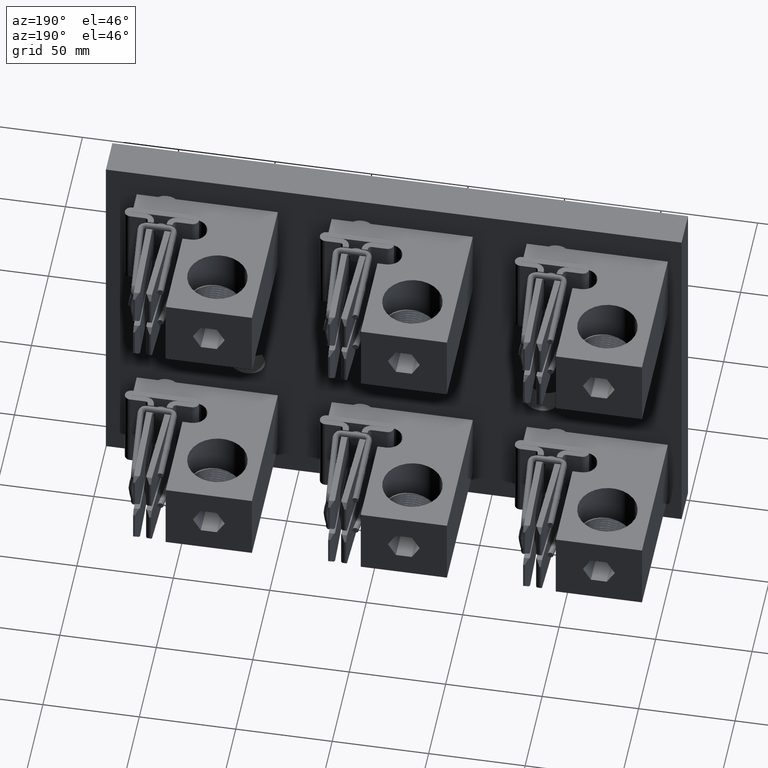
[diagram: clean part render]
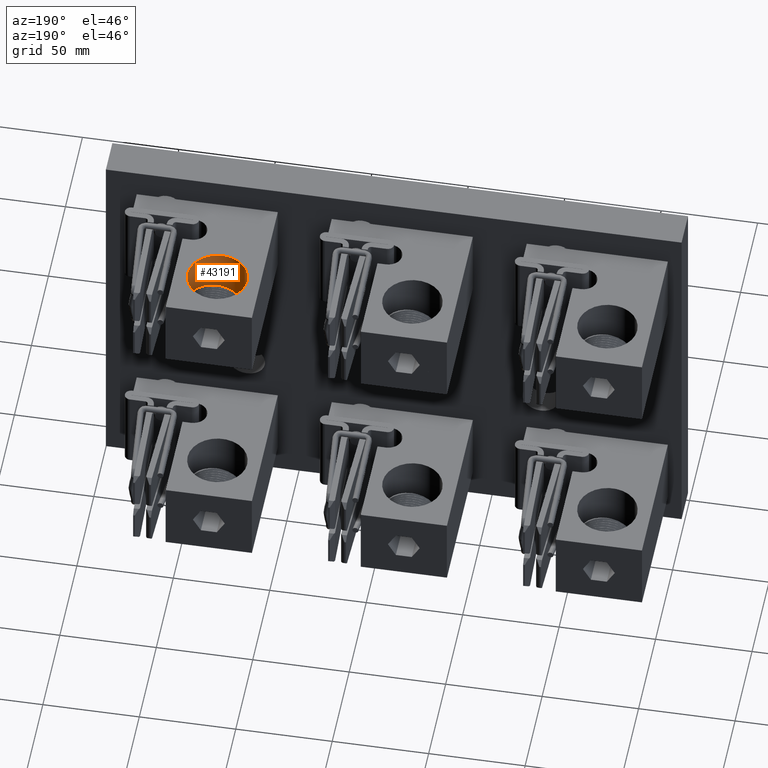
[diagram: same view with one face highlighted and labeled with its STEP entity id]
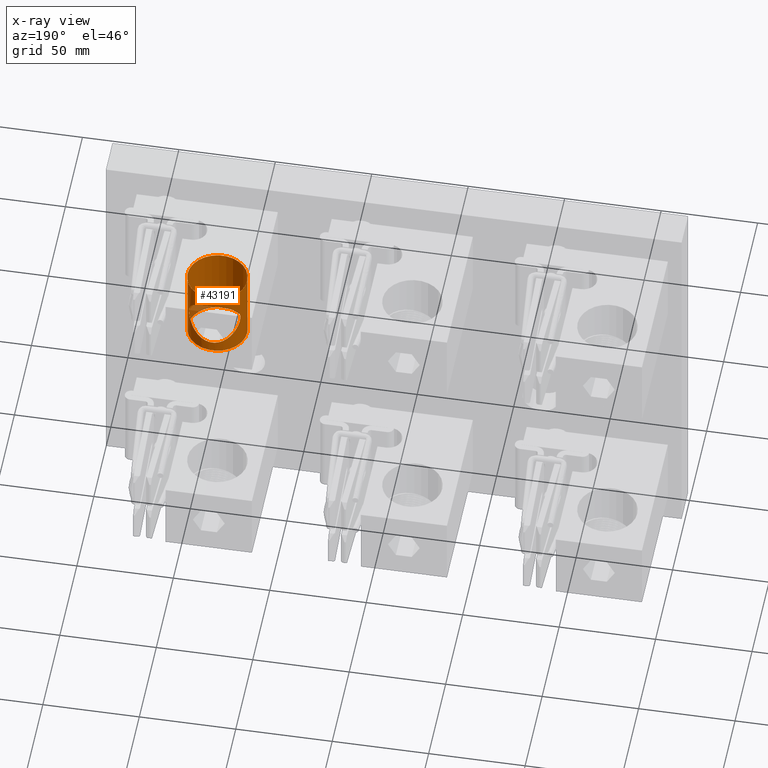
[diagram: x-ray of the same camera — body ghosted, the highlighted face saturated]
A machine part, auxiliary view. The second image highlights one B-rep face of the part: STEP entity #43191.
The next image is the same camera in x-ray: the body ghosted, the highlighted face saturated — about 4% of this face is hidden behind the body in this view.
In plain terms, the highlighted cylindrical surface (bore or boss wall) has radius 15.4686 mm, axis along (-0, 0, 1).
Its self-contained STEP definition (entity closure, byte-faithful):
#4046 = CARTESIAN_POINT ( 'NONE',  ( 2.827097322695955500, 3.193709035272325200, 2.333183651683647900 ) ) ;
#4314 = CARTESIAN_POINT ( 'NONE',  ( 3.225970257455569100, 3.358978440829739400, 2.126575082697013600 ) ) ;
#4594 = CARTESIAN_POINT ( 'NONE',  ( 3.558676988921589700, 3.272243346142679400, 2.230608804997419100 ) ) ;
#4863 = CARTESIAN_POINT ( 'NONE',  ( 3.753480332175912300, 3.085222296419632700, 2.524473005529415600 ) ) ;
#5138 = CARTESIAN_POINT ( 'NONE',  ( 3.753577437899582800, 3.085074104484783100, 2.775124366733585600 ) ) ;
#5399 = CARTESIAN_POINT ( 'NONE',  ( 3.518073435993760900, 3.294596412628638700, 3.096908370246581400 ) ) ;
#5676 = CARTESIAN_POINT ( 'NONE',  ( 3.172505664078537600, 3.354949647298513900, 3.168733009788133000 ) ) ;
#5959 = CARTESIAN_POINT ( 'NONE',  ( 2.848446398477625600, 3.212397921920481900, 2.992059320855240000 ) ) ;
#6237 = CARTESIAN_POINT ( 'NONE',  ( 2.721550000000001000, 3.061257285055306800, 2.649999999999998100 ) ) ;
#7667 = DIRECTION ( 'NONE',  ( -3.196228004487266600E-016, 0.0000000000000000000, 1.000000000000000000 ) ) ;
#9580 = VERTEX_POINT ( 'NONE', #27828 ) ;
#10469 = CARTESIAN_POINT ( 'NONE',  ( 2.880780420818535700, 3.238292195777869400, 2.273696009238495000 ) ) ;
#10742 = CARTESIAN_POINT ( 'NONE',  ( 3.280962401634974800, 3.358216363005186400, 2.127460995031094100 ) ) ;
#11023 = CARTESIAN_POINT ( 'NONE',  ( 3.596878222540591500, 3.247281598853107200, 2.262120174089649700 ) ) ;
#11295 = CARTESIAN_POINT ( 'NONE',  ( 3.763589656356949300, 3.069311141131620100, 2.576524023857639000 ) ) ;
#11581 = CARTESIAN_POINT ( 'NONE',  ( 3.738934579835118100, 3.106355943382903100, 2.824117650525077600 ) ) ;
#11862 = CARTESIAN_POINT ( 'NONE',  ( 3.472644926285135100, 3.315108435140991200, 3.121679126157027800 ) ) ;
#12134 = CARTESIAN_POINT ( 'NONE',  ( 3.119034108830572600, 3.346102412120275800, 3.158390376025197000 ) ) ;
#12393 = CARTESIAN_POINT ( 'NONE',  ( 2.818588671847344500, 3.184990048804268200, 2.954023220217060000 ) ) ;
#14449 = CARTESIAN_POINT ( 'NONE',  ( 3.854000000000000100, 2.750000000000000400, 1.899999999999998800 ) ) ;
#14574 = ORIENTED_EDGE ( 'NONE', *, *, #30203, .F. ) ;
#16722 = CARTESIAN_POINT ( 'NONE',  ( 2.722547859060700400, 3.062950835973184300, 2.612963921968487000 ) ) ;
#16994 = CARTESIAN_POINT ( 'NONE',  ( 2.917806335642074300, 3.263861333578024200, 2.241079775636110500 ) ) ;
#17270 = CARTESIAN_POINT ( 'NONE',  ( 3.317696483523217200, 3.354714970127616400, 2.131541085165986600 ) ) ;
#17536 = CARTESIAN_POINT ( 'NONE',  ( 3.642380834471784300, 3.212364658960771300, 2.307767121722704500 ) ) ;
#17826 = CARTESIAN_POINT ( 'NONE',  ( 3.767226711578616900, 3.063306831308582700, 2.613060413054484300 ) ) ;
#18097 = CARTESIAN_POINT ( 'NONE',  ( 3.713748573565776500, 3.139356783935039400, 2.885278811288822400 ) ) ;
#18377 = CARTESIAN_POINT ( 'NONE',  ( 3.424368372866132900, 3.332251220991546700, 3.142081268136823100 ) ) ;
#18647 = CARTESIAN_POINT ( 'NONE',  ( 3.067294402607462000, 3.332767437310100600, 3.142691957658355900 ) ) ;
#18922 = CARTESIAN_POINT ( 'NONE',  ( 2.776592658208511200, 3.139766126412529600, 2.885940699852755000 ) ) ;
#23176 = CARTESIAN_POINT ( 'NONE',  ( 2.729186218757047900, 3.073825352755910100, 2.559172899230815800 ) ) ;
#23437 = CARTESIAN_POINT ( 'NONE',  ( 2.971769226046230700, 3.295168269973867600, 2.202279667164220600 ) ) ;
#23611 = AXIS2_PLACEMENT_3D ( 'NONE', #27056, #7667, #59221 ) ;
#23709 = CARTESIAN_POINT ( 'NONE',  ( 3.344834784513650100, 3.350828939997650700, 2.136078531185627800 ) ) ;
#23978 = CARTESIAN_POINT ( 'NONE',  ( 3.689235010386286500, 3.166772626162444000, 2.372666466428982300 ) ) ;
#24265 = CARTESIAN_POINT ( 'NONE',  ( 3.768448316267883200, 3.061260116634077800, 2.640719364537230000 ) ) ;
#24550 = CARTESIAN_POINT ( 'NONE',  ( 3.671932366122256500, 3.184477017025521200, 2.953288434780845200 ) ) ;
#24831 = CARTESIAN_POINT ( 'NONE',  ( 3.390383301823613600, 3.341460013751302400, 3.152936759046007300 ) ) ;
#25121 = CARTESIAN_POINT ( 'NONE',  ( 3.018717697892610900, 3.315657171131666900, 3.122336269280743700 ) ) ;
#25397 = CARTESIAN_POINT ( 'NONE',  ( 2.751436171615431200, 3.106871451396173700, 2.825173599349316300 ) ) ;
#27056 = CARTESIAN_POINT ( 'NONE',  ( 3.244999999999999200, 2.750000000000000400, 3.399999999999998600 ) ) ;
#27731 = FACE_BOUND ( 'NONE', #73331, .T. ) ;
#27828 = CARTESIAN_POINT ( 'NONE',  ( 2.721550000000000600, 3.061257285055306800, 2.649999999999998100 ) ) ;
#28718 = ORIENTED_EDGE ( 'NONE', *, *, #51632, .T. ) ;
#29280 = CARTESIAN_POINT ( 'NONE',  ( 2.721550000000001000, 3.061257285055306800, 2.649999999999998100 ) ) ;
#29544 = CARTESIAN_POINT ( 'NONE',  ( 2.750457392991746600, 3.106022455920145900, 2.475327336860766400 ) ) ;
#29826 = CARTESIAN_POINT ( 'NONE',  ( 3.065741722982031600, 3.333034517968976700, 2.156939781054962400 ) ) ;
#30092 = CARTESIAN_POINT ( 'NONE',  ( 3.388823432407911200, 3.342035339655247600, 2.146379919828160300 ) ) ;
#30203 = EDGE_CURVE ( 'NONE', #35622, #35622, #62680, .T. ) ;
#30368 = CARTESIAN_POINT ( 'NONE',  ( 3.712983039262752500, 3.139885770684362100, 2.414940918251132100 ) ) ;
#30648 = CARTESIAN_POINT ( 'NONE',  ( 3.767492426401792400, 3.062883834307806200, 2.686562456118276800 ) ) ;
#30927 = CARTESIAN_POINT ( 'NONE',  ( 3.642211510794793200, 3.211832882506710600, 2.991295979701595000 ) ) ;
#31213 = CARTESIAN_POINT ( 'NONE',  ( 3.364022832601296600, 3.347324770169596500, 3.159820339796502800 ) ) ;
#31405 = DIRECTION ( 'NONE',  ( -3.196228004487266600E-016, 0.0000000000000000000, 1.000000000000000000 ) ) ;
#31489 = CARTESIAN_POINT ( 'NONE',  ( 2.973398433317543200, 3.295330027291612000, 3.097801484172474100 ) ) ;
#31602 = CARTESIAN_POINT ( 'NONE',  ( 3.245000000000000100, 2.750000000000000400, 1.899999999999998600 ) ) ;
#31777 = CARTESIAN_POINT ( 'NONE',  ( 2.736610859064618800, 3.085360832578287300, 2.775892537813367900 ) ) ;
#31822 = AXIS2_PLACEMENT_3D ( 'NONE', #69719, #31405, #76195 ) ;
#31886 = AXIS2_PLACEMENT_3D ( 'NONE', #31602, #76395, #38070 ) ;
#34769 = CYLINDRICAL_SURFACE ( 'NONE', #23611, 0.6089999999999999900 ) ;
#35622 = VERTEX_POINT ( 'NONE', #14449 ) ;
#35785 = CARTESIAN_POINT ( 'NONE',  ( 2.721550000000001900, 3.061257285055306800, 2.631296366142739100 ) ) ;
#36058 = CARTESIAN_POINT ( 'NONE',  ( 2.776925452318579800, 3.139776289595448900, 2.415121561112944600 ) ) ;
#36331 = CARTESIAN_POINT ( 'NONE',  ( 3.152727378891530700, 3.352239204130068800, 2.134427611079096300 ) ) ;
#36596 = CARTESIAN_POINT ( 'NONE',  ( 3.439488357795526000, 3.327363659359442200, 2.163705336793579900 ) ) ;
#36850 = CARTESIAN_POINT ( 'NONE',  ( 3.732907017073189900, 3.114606734211519300, 2.459696666245016600 ) ) ;
#37132 = CARTESIAN_POINT ( 'NONE',  ( 3.763419171952910000, 3.069577241989805700, 2.722952480682316900 ) ) ;
#37405 = CARTESIAN_POINT ( 'NONE',  ( 3.597789523670596800, 3.247227208084749100, 3.038044760653790800 ) ) ;
#37691 = CARTESIAN_POINT ( 'NONE',  ( 3.283145412704463300, 3.358920179919668000, 3.173357134458825200 ) ) ;
#37958 = CARTESIAN_POINT ( 'NONE',  ( 2.917688155329962700, 3.264533919914875100, 3.059867355382408500 ) ) ;
#38070 = DIRECTION ( 'NONE',  ( 1.000000000000000000, 0.0000000000000000000, 4.485793093044767300E-016 ) ) ;
#38245 = CARTESIAN_POINT ( 'NONE',  ( 2.726462499277800200, 3.069396299210059200, 2.723868584601812200 ) ) ;
#42505 = CARTESIAN_POINT ( 'NONE',  ( 2.800589658133609800, 3.166581669018505800, 2.372956345530534300 ) ) ;
#42769 = CARTESIAN_POINT ( 'NONE',  ( 3.207655152820560100, 3.358131723077258300, 2.127559473358726600 ) ) ;
#43054 = CARTESIAN_POINT ( 'NONE',  ( 3.517363056709535300, 3.295619674513947200, 2.201728241868542200 ) ) ;
#43191 = ADVANCED_FACE ( 'NONE', ( #44779, #76781, #27731 ), #34769, .F. ) ;
#43323 = CARTESIAN_POINT ( 'NONE',  ( 3.748994417306605900, 3.091980958967213600, 2.507600589737682300 ) ) ;
#43599 = CARTESIAN_POINT ( 'NONE',  ( 3.759000636034742100, 3.076642790545078400, 2.749398452722495300 ) ) ;
#43872 = CARTESIAN_POINT ( 'NONE',  ( 3.532319696457716200, 3.287190139223977100, 3.087862674100910100 ) ) ;
#44134 = CARTESIAN_POINT ( 'NONE',  ( 3.209156797814636700, 3.358222631414180500, 3.172546293682817300 ) ) ;
#44404 = CARTESIAN_POINT ( 'NONE',  ( 2.859133595002784700, 3.221372496849790300, 3.004071820420681800 ) ) ;
#44688 = CARTESIAN_POINT ( 'NONE',  ( 2.721549999999999200, 3.061257285055306400, 2.668703633857257600 ) ) ;
#44779 = FACE_OUTER_BOUND ( 'NONE', #45678, .T. ) ;
#45505 = VERTEX_POINT ( 'NONE', #69532 ) ;
#45678 = EDGE_LOOP ( 'NONE', ( #28718 ) ) ;
#47136 = B_SPLINE_CURVE_WITH_KNOTS ( 'NONE', 3,
 ( #29280, #35785, #16722, #61503, #23176, #67932, #29544, #74373, #36058, #80668, #42505, #4046, #48838, #10469, #55304, #16994, #61774, #23437, #68199, #29826, #74632, #36331, #80949, #42769, #4314, #49107, #10742, #55576, #17270, #62044, #23709, #68472, #30092, #74902, #36596, #81221, #43054, #4594, #49393, #11023, #55840, #17536, #62325, #23978, #68728, #30368, #75173, #36850, #81491, #43323, #4863, #49661, #11295, #56114, #17826, #62583, #24265, #69003, #30648, #75443, #37132, #81767, #43599, #5138, #49938, #11581, #56405, #18097, #62869, #24550, #69266, #30927, #75718, #37405, #82048, #43872, #5399, #50225, #11862, #56683, #18377, #63146, #24831, #69534, #31213, #75998, #37691, #82326, #44134, #5676, #50496, #12134, #56982, #18647, #63415, #25121, #69799, #31489, #76281, #37958, #82611, #44404, #5959, #50762, #12393, #57258, #18922, #63685, #25397, #70081, #31777, #76554, #38245, #82881, #44688, #6237 ),
 .UNSPECIFIED., .T., .F.,
 ( 4, 2, 2, 2, 2, 2, 2, 2, 2, 2, 2, 2, 2, 2, 2, 2, 2, 2, 2, 2, 2, 2, 2, 2, 2, 2, 2, 2, 2, 2, 2, 2, 2, 2, 2, 2, 2, 2, 2, 2, 2, 2, 2, 2, 2, 2, 2, 2, 2, 2, 2, 2, 2, 2, 2, 2, 2, 4 ),
 ( 0.0000000000000000000, 0.001400456203850344200, 0.002800912407700688300, 0.005601824815401317700, 0.007002281019251647100, 0.008402737223101978300, 0.01120364963080258200, 0.01260410583465291200, 0.01400456203850324400, 0.01680547444620387700, 0.01960638685390450600, 0.02100684305775479800, 0.02240729926160509000, 0.02380775546545538200, 0.02450798356738054600, 0.02520821166930570600, 0.02660866787315607800, 0.02800912407700645300, 0.03081003648470716900, 0.03221049268855751000, 0.03361094889240785100, 0.03641186130010853900, 0.03781231750395888700, 0.03921277370780923400, 0.04061322991165959600, 0.04201368611550995700, 0.04341414231936032600, 0.04411437042128550000, 0.04481459852321068000, 0.04621505472706104200, 0.04691528282898623600, 0.04761551093091143800, 0.04901596713476187600, 0.05041642333861230700, 0.05321733574631318200, 0.05461779195016364100, 0.05601824815401409300, 0.05881916056171500300, 0.06021961676556549700, 0.06162007296941597600, 0.06302052917326646200, 0.06372075727519169200, 0.06442098537711689300, 0.06722189778481765800, 0.06862235398866801900, 0.07002281019251839500, 0.07142326639636875600, 0.07282372260021911800, 0.07422417880406947900, 0.07562463500791985500, 0.07842554741562057800, 0.07982600361947092500, 0.08122645982332128700, 0.08402737223102202400, 0.08542782843487241300, 0.08682828463872280200, 0.08822874084257319200, 0.08962919704642359500 ),
 .UNSPECIFIED. ) ;
#48838 = CARTESIAN_POINT ( 'NONE',  ( 2.847030469090114000, 3.211863544495716600, 2.308440449912467800 ) ) ;
#49107 = CARTESIAN_POINT ( 'NONE',  ( 3.262623882065269800, 3.359020747822007100, 2.126525861253972600 ) ) ;
#49393 = CARTESIAN_POINT ( 'NONE',  ( 3.571898325680035400, 3.264047426531654100, 2.240846572158856200 ) ) ;
#49661 = CARTESIAN_POINT ( 'NONE',  ( 3.760759787433627800, 3.073910601698980100, 2.558889538378063200 ) ) ;
#49938 = CARTESIAN_POINT ( 'NONE',  ( 3.749182206462566800, 3.091703424372291800, 2.791734357400757800 ) ) ;
#50225 = CARTESIAN_POINT ( 'NONE',  ( 3.488123050380654200, 3.308610361940258900, 3.113882932662434700 ) ) ;
#50476 = ORIENTED_EDGE ( 'NONE', *, *, #70395, .F. ) ;
#50496 = CARTESIAN_POINT ( 'NONE',  ( 3.154487806718977000, 3.352505630132348400, 3.165883439393637000 ) ) ;
#50762 = CARTESIAN_POINT ( 'NONE',  ( 2.828165643782320600, 3.194202337401931900, 2.967030688326709700 ) ) ;
#51632 = EDGE_CURVE ( 'NONE', #45505, #45505, #76150, .T. ) ;
#55304 = CARTESIAN_POINT ( 'NONE',  ( 2.892733602187488500, 3.247008600644646100, 2.262469576856243900 ) ) ;
#55576 = CARTESIAN_POINT ( 'NONE',  ( 3.308488066123731500, 3.355751702514753200, 2.130332540131497400 ) ) ;
#55840 = CARTESIAN_POINT ( 'NONE',  ( 3.608706379225556500, 3.238673276408672300, 2.273202555435284800 ) ) ;
#56114 = CARTESIAN_POINT ( 'NONE',  ( 3.766486038044551100, 3.064542161335164700, 2.603786076911608100 ) ) ;
#56405 = CARTESIAN_POINT ( 'NONE',  ( 3.733068958474283300, 3.114390483379950900, 2.839891955369850500 ) ) ;
#56683 = CARTESIAN_POINT ( 'NONE',  ( 3.440779019401896600, 3.326923159088707800, 3.135771536915918000 ) ) ;
#56982 = CARTESIAN_POINT ( 'NONE',  ( 3.101598384504960800, 3.342142839192566500, 3.153746584265615800 ) ) ;
#57258 = CARTESIAN_POINT ( 'NONE',  ( 2.791888563582079800, 3.157699496602450800, 2.914040291469960600 ) ) ;
#59221 = DIRECTION ( 'NONE',  ( 1.000000000000000000, 0.0000000000000000000, 0.0000000000000000000 ) ) ;
#61503 = CARTESIAN_POINT ( 'NONE',  ( 2.726357008494794800, 3.069223922460243800, 2.576942775781279100 ) ) ;
#61774 = CARTESIAN_POINT ( 'NONE',  ( 2.930874101498492900, 3.271968911426765400, 2.230951094938657100 ) ) ;
#62044 = CARTESIAN_POINT ( 'NONE',  ( 3.335857942237652200, 3.352253939916895100, 2.134413674134152400 ) ) ;
#62325 = CARTESIAN_POINT ( 'NONE',  ( 3.662435307023373700, 3.194163742256491000, 2.332537261818218100 ) ) ;
#62583 = CARTESIAN_POINT ( 'NONE',  ( 3.768205048341652500, 3.061670316553645400, 2.631513551997990000 ) ) ;
#62680 = CIRCLE ( 'NONE', #31886, 0.6089999999999999900 ) ;
#62869 = CARTESIAN_POINT ( 'NONE',  ( 3.698483431871423500, 3.157278616284580500, 2.913388589685215200 ) ) ;
#63146 = CARTESIAN_POINT ( 'NONE',  ( 3.398976737496040900, 3.339278617203078600, 3.150370201045208200 ) ) ;
#63415 = CARTESIAN_POINT ( 'NONE',  ( 3.050721149676675300, 3.327431765507188600, 3.136375328159354000 ) ) ;
#63685 = CARTESIAN_POINT ( 'NONE',  ( 2.757268382387066300, 3.114841591607055500, 2.840751563502016200 ) ) ;
#67932 = CARTESIAN_POINT ( 'NONE',  ( 2.740161324051514600, 3.090883814953339300, 2.507199858600458700 ) ) ;
#68199 = CARTESIAN_POINT ( 'NONE',  ( 3.001266935426451200, 3.309157377002534000, 2.185418357423408100 ) ) ;
#68406 = EDGE_LOOP ( 'NONE', ( #14574 ) ) ;
#68472 = CARTESIAN_POINT ( 'NONE',  ( 3.371466524383185200, 3.345997328484607200, 2.141732794743487200 ) ) ;
#68728 = CARTESIAN_POINT ( 'NONE',  ( 3.697596821385268100, 3.157645871427263700, 2.386528911980510000 ) ) ;
#69003 = CARTESIAN_POINT ( 'NONE',  ( 3.768453341352509900, 3.061251665810572800, 2.668274898631482400 ) ) ;
#69266 = CARTESIAN_POINT ( 'NONE',  ( 3.662466264948534400, 3.193608513559267800, 2.966199063405121600 ) ) ;
#69532 = CARTESIAN_POINT ( 'NONE',  ( 3.853999999999998800, 2.750000000000000400, 3.399999999999998600 ) ) ;
#69534 = CARTESIAN_POINT ( 'NONE',  ( 3.372923456523836600, 3.345480345256515200, 3.157658622816387000 ) ) ;
#69719 = CARTESIAN_POINT ( 'NONE',  ( 3.244999999999999200, 2.750000000000000400, 3.399999999999998600 ) ) ;
#69799 = CARTESIAN_POINT ( 'NONE',  ( 3.003269433293544600, 3.309212466608186400, 3.114607267884620200 ) ) ;
#70081 = CARTESIAN_POINT ( 'NONE',  ( 2.741075838282104100, 3.092086136445425700, 2.792658619913209100 ) ) ;
#70395 = EDGE_CURVE ( 'NONE', #9580, #9580, #47136, .T. ) ;
#73331 = EDGE_LOOP ( 'NONE', ( #50476 ) ) ;
#74373 = CARTESIAN_POINT ( 'NONE',  ( 2.769785670708222500, 3.131002868824170400, 2.429904565109962900 ) ) ;
#74632 = CARTESIAN_POINT ( 'NONE',  ( 3.099509667512293300, 3.342464974105977300, 2.145867720783574600 ) ) ;
#74902 = CARTESIAN_POINT ( 'NONE',  ( 3.422788571867006800, 3.332736858988502700, 2.157344350914987900 ) ) ;
#75173 = CARTESIAN_POINT ( 'NONE',  ( 3.720043473712838700, 3.131215196476329100, 2.429540674430955300 ) ) ;
#75443 = CARTESIAN_POINT ( 'NONE',  ( 3.764618642260012700, 3.067617496322947400, 2.713876292174949100 ) ) ;
#75718 = CARTESIAN_POINT ( 'NONE',  ( 3.631502421764556000, 3.220850787498548100, 3.003377419929142100 ) ) ;
#75998 = CARTESIAN_POINT ( 'NONE',  ( 3.319406321111812600, 3.355526011989684100, 3.169419463140478000 ) ) ;
#76150 = CIRCLE ( 'NONE', #31822, 0.6089999999999994300 ) ;
#76195 = DIRECTION ( 'NONE',  ( 1.000000000000000000, 0.0000000000000000000, 0.0000000000000000000 ) ) ;
#76281 = CARTESIAN_POINT ( 'NONE',  ( 2.958917534655859200, 3.287854183421200700, 3.088677356453449500 ) ) ;
#76395 = DIRECTION ( 'NONE',  ( -3.196228004487266600E-016, 0.0000000000000000000, 1.000000000000000000 ) ) ;
#76554 = CARTESIAN_POINT ( 'NONE',  ( 2.729314853960543600, 3.074029685064317200, 2.741527481405149600 ) ) ;
#76781 = FACE_OUTER_BOUND ( 'NONE', #68406, .T. ) ;
#80668 = CARTESIAN_POINT ( 'NONE',  ( 2.792324524953330800, 3.157558894405748000, 2.386662616530696100 ) ) ;
#80949 = CARTESIAN_POINT ( 'NONE',  ( 3.171048624843347200, 3.354772704688472600, 2.131473302904752600 ) ) ;
#81221 = CARTESIAN_POINT ( 'NONE',  ( 3.487715431008357100, 3.309592964053452900, 2.184895285796187600 ) ) ;
#81491 = CARTESIAN_POINT ( 'NONE',  ( 3.738711161346376600, 3.106666003614547900, 2.475250883031436800 ) ) ;
#81767 = CARTESIAN_POINT ( 'NONE',  ( 3.760612572063447300, 3.074085987010029900, 2.740687252776553300 ) ) ;
#82048 = CARTESIAN_POINT ( 'NONE',  ( 3.573131790195413600, 3.263994107817655500, 3.059188389542719200 ) ) ;
#82326 = CARTESIAN_POINT ( 'NONE',  ( 3.227871850221523800, 3.359037840360608900, 3.173494024832185900 ) ) ;
#82611 = CARTESIAN_POINT ( 'NONE',  ( 2.892909683508334800, 3.247723881484822200, 3.038679363510295800 ) ) ;
#82881 = CARTESIAN_POINT ( 'NONE',  ( 2.722558511929707800, 3.062969690460926500, 2.687317542646876100 ) ) ;